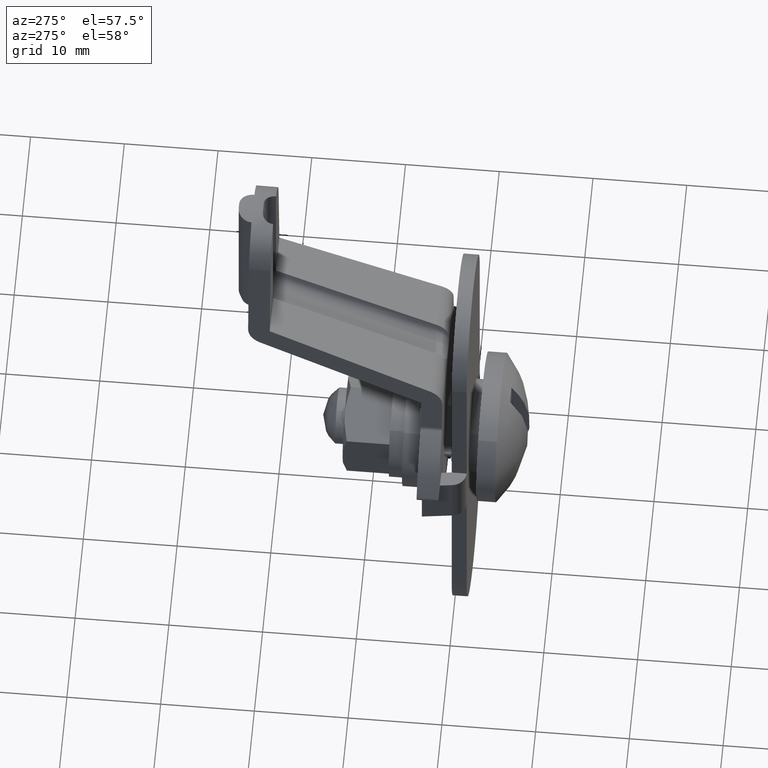
[diagram: clean part render]
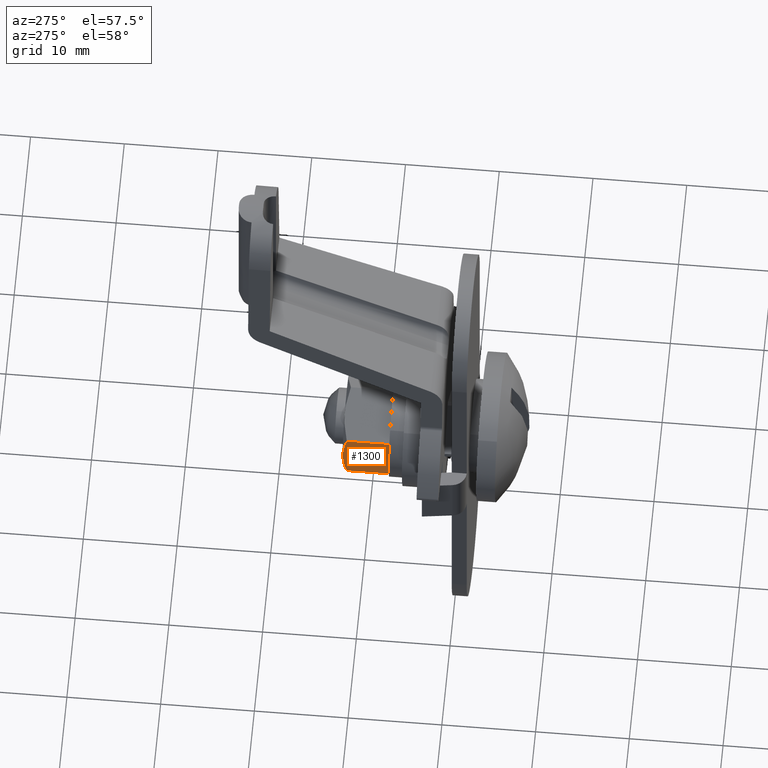
[diagram: same view with one face highlighted and labeled with its STEP entity id]
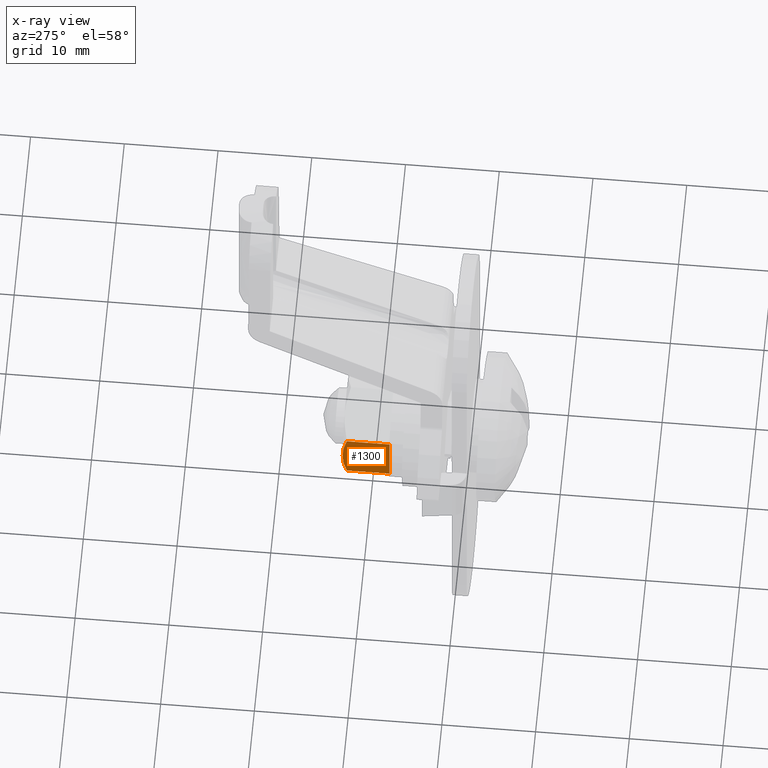
[diagram: x-ray of the same camera — body ghosted, the highlighted face saturated]
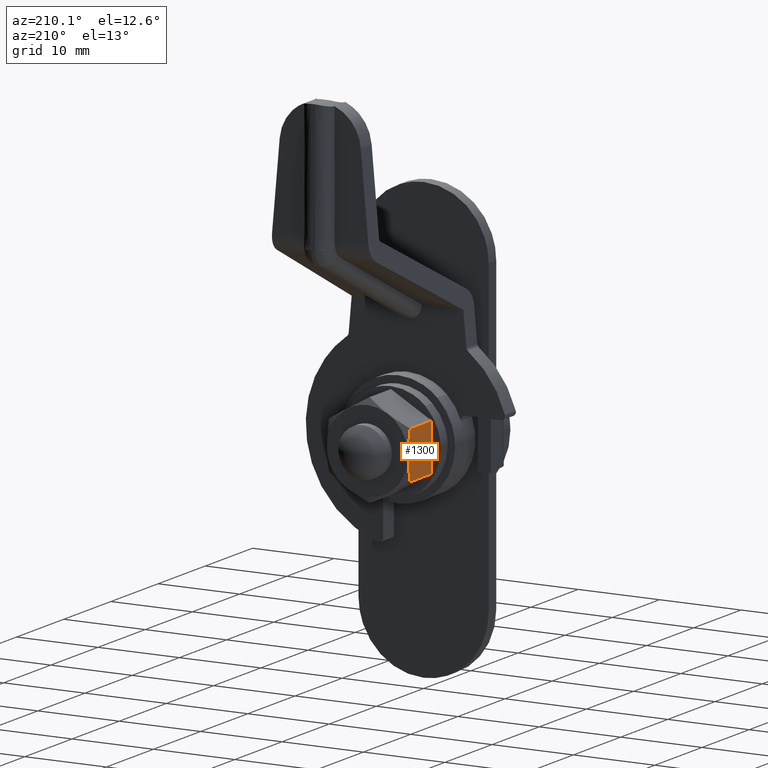
[diagram: same view with one face highlighted and labeled with its STEP entity id]
A machine part, auxiliary view. The second image highlights one B-rep face of the part: STEP entity #1300.
The next image is the same camera in x-ray: the body ghosted, the highlighted face saturated — about 0% of this face is hidden behind the body in this view.
A second angle (auxiliary view) of the same face is appended — the face is thin or edge-on in the first view.
In plain terms, the highlighted face is a freeform B-spline surface patch.
Its self-contained STEP definition (entity closure, byte-faithful):
#1240=CARTESIAN_POINT('',(-4.999999999999941,6.650259337253595,3.175153446157618));
#1241=CARTESIAN_POINT('',(-4.999999999999941,6.650259337253595,-3.175145326222725));
#1242=CARTESIAN_POINT('',(-4.999999999999941,12.149755192163729,3.175153446157618));
#1243=CARTESIAN_POINT('',(-4.999999999999941,12.149755192163729,-3.175145326222725));
#1244=B_SPLINE_SURFACE_WITH_KNOTS('',1,1,((#1240,#1242),(#1241,#1243)),.UNSPECIFIED.,.F.,.F.,.U.,(2,2),(2,2),(0.0,6.350298772380343),(0.0,5.499495854910133),.UNSPECIFIED.);
#1245=CARTESIAN_POINT('',(-5.000004029462829,11.453417686322361,-2.886757677269805));
#1246=VERTEX_POINT('',#1245);
#1247=CARTESIAN_POINT('',(-4.999999999999941,6.900009000000210,-2.886755350855095));
#1248=VERTEX_POINT('',#1247);
#1249=CARTESIAN_POINT('',(-5.000004029462829,11.453417686322361,-2.886757677269805));
#1250=CARTESIAN_POINT('',(-4.999999999999941,6.900009000000210,-2.886755350855095));
#1251=QUASI_UNIFORM_CURVE('',1,(#1249,#1250),.UNSPECIFIED.,.F.,.U.);
#1252=EDGE_CURVE('',#1246,#1248,#1251,.T.);
#1253=ORIENTED_EDGE('',*,*,#1252,.T.);
#1254=CARTESIAN_POINT('',(-4.999999999999941,6.900009000000210,2.886763350852705));
#1255=VERTEX_POINT('',#1254);
#1256=CARTESIAN_POINT('',(-4.999999999999941,6.900009000000210,-2.886755350855095));
#1257=CARTESIAN_POINT('',(-4.999999999999941,6.900009000000210,2.886763350852705));
#1258=QUASI_UNIFORM_CURVE('',1,(#1256,#1257),.UNSPECIFIED.,.F.,.U.);
#1259=EDGE_CURVE('',#1248,#1255,#1258,.T.);
#1260=ORIENTED_EDGE('',*,*,#1259,.T.);
#1261=CARTESIAN_POINT('',(-5.000004594815960,11.453415000000200,2.886766003681994));
#1262=VERTEX_POINT('',#1261);
#1263=CARTESIAN_POINT('',(-5.000004594815960,11.453415000000200,2.886766003681994));
#1264=CARTESIAN_POINT('',(-4.999999999999941,6.900009000000210,2.886763350852705));
#1265=QUASI_UNIFORM_CURVE('',1,(#1263,#1264),.UNSPECIFIED.,.F.,.U.);
#1266=EDGE_CURVE('',#1262,#1255,#1265,.T.);
#1267=ORIENTED_EDGE('',*,*,#1266,.F.);
#1268=CARTESIAN_POINT('',(-4.999999999999941,11.900005618824020,-7.715016E-016));
#1269=VERTEX_POINT('',#1268);
#1270=CARTESIAN_POINT('',(-4.999999999999941,11.900005618824020,-7.715016E-016));
#1271=CARTESIAN_POINT('',(-5.000000000452594,11.900005618667000,0.000291193285393));
#1272=CARTESIAN_POINT('',(-5.000000000905254,11.900005603751140,0.000582387683218));
#1273=CARTESIAN_POINT('',(-5.000000380628999,11.899980710009229,0.244855585277952));
#1274=CARTESIAN_POINT('',(-5.000000763607309,11.889590270589821,0.489618881947954));
#1275=CARTESIAN_POINT('',(-5.000001343563501,11.858657883444041,0.857920570799538));
#1276=CARTESIAN_POINT('',(-5.000001537097981,11.845830053715311,0.980437202892849));
#1277=CARTESIAN_POINT('',(-5.000001922734133,11.815579764777709,1.223837940126300));
#1278=CARTESIAN_POINT('',(-5.000002115131522,11.798142826255690,1.344910041293423));
#1279=CARTESIAN_POINT('',(-5.000003075181370,11.700313234984870,1.947377623633735));
#1280=CARTESIAN_POINT('',(-5.000003837047352,11.588122242802390,2.420131391419946));
#1281=CARTESIAN_POINT('',(-5.000004594815960,11.453415000000200,2.886766003681994));
#1282=B_SPLINE_CURVE_WITH_KNOTS('',3,(#1270,#1271,#1272,#1273,#1274,#1275,#1276,#1277,#1278,#1279,#1280,#1281),.UNSPECIFIED.,.F.,.U.,(4,2,2,2,2,4),(0.499850810967696,0.500000000000000,0.625000000000000,0.687500000000000,0.750000000000000,1.0),.UNSPECIFIED.);
#1283=EDGE_CURVE('',#1269,#1262,#1282,.T.);
#1284=ORIENTED_EDGE('',*,*,#1283,.F.);
#1285=CARTESIAN_POINT('',(-5.000004029462829,11.453417686322361,-2.886757677269805));
#1286=CARTESIAN_POINT('',(-5.000003695050579,11.521206059679271,-2.651933792894604));
#1287=CARTESIAN_POINT('',(-5.000003358868841,11.583438785543750,-2.414952420954235));
#1288=CARTESIAN_POINT('',(-5.000002682032347,11.693860330408940,-1.935535847530444));
#1289=CARTESIAN_POINT('',(-5.000002344130780,11.741561855912240,-1.695044882427390));
#1290=CARTESIAN_POINT('',(-5.000001670529366,11.819284436766511,-1.212942848534482));
#1291=CARTESIAN_POINT('',(-5.000001334683867,11.849312760112969,-0.971226058040101));
#1292=CARTESIAN_POINT('',(-5.000000665520274,11.889668726839190,-0.486598756947933));
#1293=CARTESIAN_POINT('',(-5.000000332201225,11.900005276175030,-0.243688917625146));
#1294=CARTESIAN_POINT('',(-4.999999999999941,11.900005618824020,-7.715016E-016));
#1295=B_SPLINE_CURVE_WITH_KNOTS('',3,(#1285,#1286,#1287,#1288,#1289,#1290,#1291,#1292,#1293,#1294),.UNSPECIFIED.,.F.,.U.,(4,2,2,2,4),(0.0,0.125000000000000,0.250000000000000,0.375000000000000,0.499850810937030),.UNSPECIFIED.);
#1296=EDGE_CURVE('',#1246,#1269,#1295,.T.);
#1297=ORIENTED_EDGE('',*,*,#1296,.F.);
#1298=EDGE_LOOP('',(#1253,#1260,#1267,#1284,#1297));
#1299=FACE_OUTER_BOUND('',#1298,.T.);
#1300=ADVANCED_FACE('',(#1299),#1244,.F.);